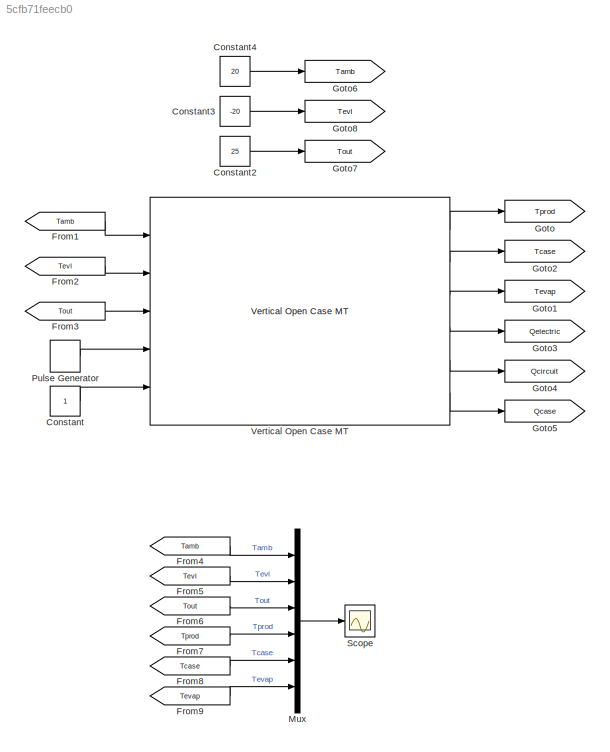
MODEL slx_5cfb71feecb0
KIND model
BLOCK [Constant] Constant
BLOCK [Constant] Constant2
  Value = 25
BLOCK [Constant] Constant3
  Value = -20
BLOCK [Constant] Constant4
  Value = 20
BLOCK [From] From1
  GotoTag = Tamb
BLOCK [From] From2
  GotoTag = Tevl
BLOCK [From] From3
  GotoTag = Tout
BLOCK [From] From4
  GotoTag = Tamb
BLOCK [From] From5
  GotoTag = Tevl
BLOCK [From] From6
  GotoTag = Tout
BLOCK [From] From7
  GotoTag = Tprod
BLOCK [From] From8
  GotoTag = Tcase
BLOCK [From] From9
  GotoTag = Tevap
BLOCK [Goto] Goto
  GotoTag = Tprod
BLOCK [Goto] Goto1
  GotoTag = Tevap
BLOCK [Goto] Goto2
  GotoTag = Tcase
BLOCK [Goto] Goto3
  GotoTag = Qelectric
BLOCK [Goto] Goto4
  GotoTag = Qcircuit
BLOCK [Goto] Goto5
  GotoTag = Qcase
BLOCK [Goto] Goto6
  GotoTag = Tamb
BLOCK [Goto] Goto7
  GotoTag = Tout
BLOCK [Goto] Goto8
  GotoTag = Tevl
BLOCK [Mux] Mux
  DisplayOption = bar
  Inputs = 6
  Ports = [6, 1]
BLOCK [DiscretePulseGenerator] Pulse Generator
  Period = 24*3600
  PhaseDelay = 12*3600
  Ports = [0, 1]
  PulseType = Time based
  PulseWidth = 100*1/24
BLOCK [Scope] Scope
  Floating = off
  LegendLocations = 0.84322     0.83023     0.11017     0.11996
  LimitDataPoints = off
  NumInputPorts = 1
  Ports = [1]
  ShowLegends = on
  YMax = 32.5
  YMin = -22.5
BLOCK [Reference] Vertical Open Case MT  REF=caselibrary/Vertical Open Case MT
  Ports = [5, 6]
  SourceBlock = caselibrary/Vertical Open Case MT
  SourceType = SubSystem
LINE Constant2:1 -> Goto7:1
LINE Constant3:1 -> Goto8:1
LINE Constant4:1 -> Goto6:1
LINE Constant:1 -> Vertical Open Case MT:5
LINE From1:1 -> Vertical Open Case MT:1
LINE From2:1 -> Vertical Open Case MT:2
LINE From3:1 -> Vertical Open Case MT:3
LINE From4:1 -> Mux:1
LINE From5:1 -> Mux:2
LINE From6:1 -> Mux:3
LINE From7:1 -> Mux:4
LINE From8:1 -> Mux:5
LINE From9:1 -> Mux:6
LINE Mux:1 -> Scope:1
LINE Pulse Generator:1 -> Vertical Open Case MT:4
LINE Vertical Open Case MT:1 -> Goto:1
LINE Vertical Open Case MT:2 -> Goto2:1
LINE Vertical Open Case MT:3 -> Goto1:1
LINE Vertical Open Case MT:4 -> Goto3:1
LINE Vertical Open Case MT:5 -> Goto4:1
LINE Vertical Open Case MT:6 -> Goto5:1
